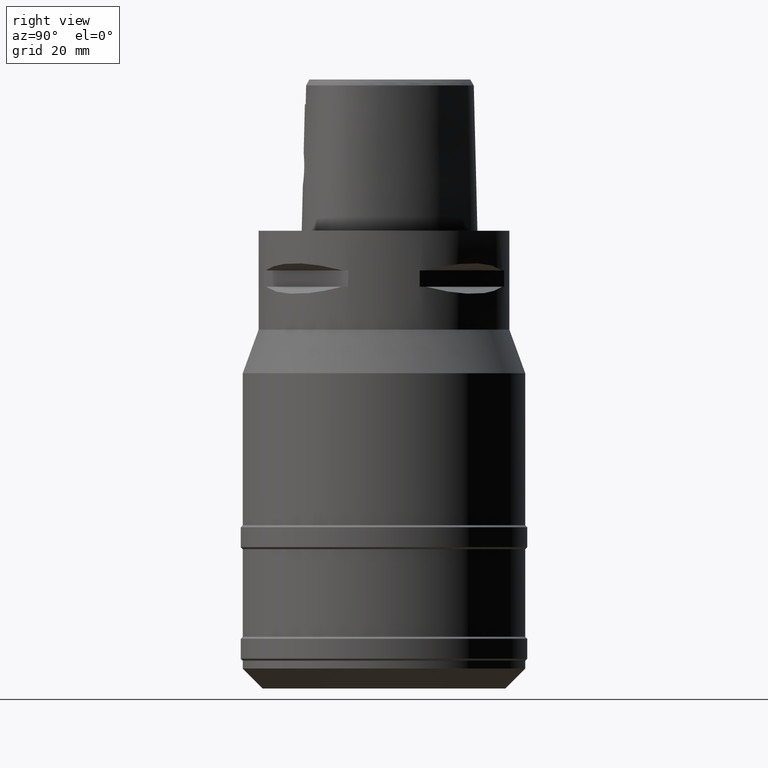
[diagram: clean part render]
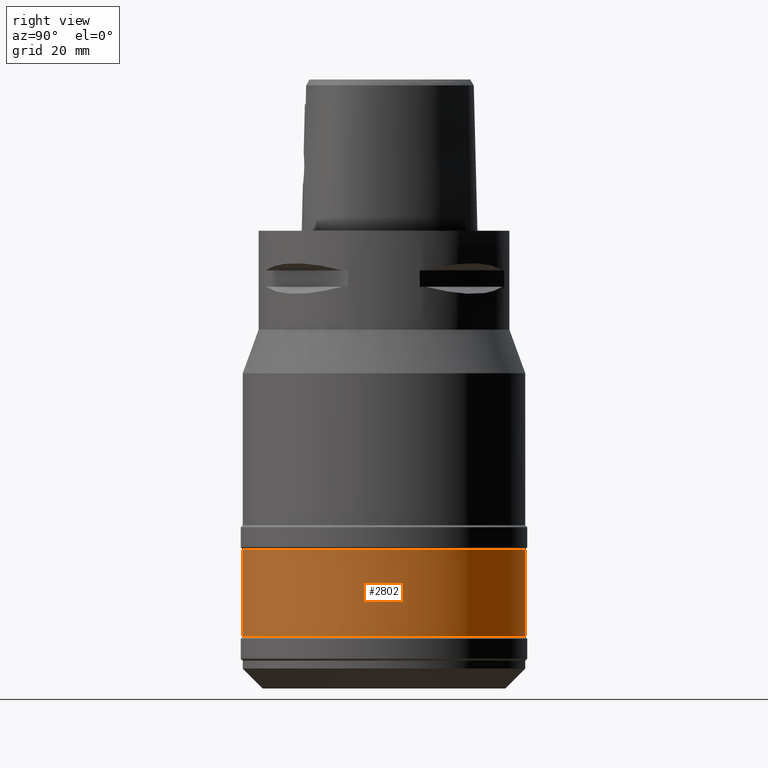
[diagram: same view with one face highlighted and labeled with its STEP entity id]
A machine part, right view. The second image highlights one B-rep face of the part: STEP entity #2802.
In plain terms, the highlighted cylindrical surface (partial cylindrical patch) has radius 35.5 mm, axis along (0, 0, -1).
Its self-contained STEP definition (entity closure, byte-faithful):
#669=CARTESIAN_POINT('',(0.E0,0.E0,-8.E1));
#670=DIRECTION('',(0.E0,0.E0,-1.E0));
#671=DIRECTION('',(0.E0,1.E0,0.E0));
#672=AXIS2_PLACEMENT_3D('',#669,#670,#671);
#708=DIRECTION('',(0.E0,0.E0,-1.E0));
#709=VECTOR('',#708,2.2E1);
#710=CARTESIAN_POINT('',(0.E0,-3.55E1,-8.E1));
#711=LINE('',#710,#709);
#715=DIRECTION('',(0.E0,0.E0,-1.E0));
#716=VECTOR('',#715,2.2E1);
#717=CARTESIAN_POINT('',(0.E0,3.55E1,-8.E1));
#718=LINE('',#717,#716);
#737=CARTESIAN_POINT('',(0.E0,0.E0,-1.02E2));
#738=DIRECTION('',(0.E0,0.E0,1.E0));
#739=DIRECTION('',(0.E0,-1.E0,0.E0));
#740=AXIS2_PLACEMENT_3D('',#737,#738,#739);
#1756=CARTESIAN_POINT('',(0.E0,3.55E1,-8.E1));
#1757=VERTEX_POINT('',#1756);
#1758=CARTESIAN_POINT('',(0.E0,-3.55E1,-8.E1));
#1759=VERTEX_POINT('',#1758);
#1760=CARTESIAN_POINT('',(0.E0,3.55E1,-1.02E2));
#1761=VERTEX_POINT('',#1760);
#1762=CARTESIAN_POINT('',(0.E0,-3.55E1,-1.02E2));
#1763=VERTEX_POINT('',#1762);
#2790=CARTESIAN_POINT('',(0.E0,1.295063990098E-14,5.75E0));
#2791=DIRECTION('',(0.E0,0.E0,-1.E0));
#2792=DIRECTION('',(0.E0,-1.E0,0.E0));
#2793=AXIS2_PLACEMENT_3D('',#2790,#2791,#2792);
#2794=CYLINDRICAL_SURFACE('',#2793,3.55E1);
#2795=ORIENTED_EDGE('',*,*,#2780,.T.);
#2797=ORIENTED_EDGE('',*,*,#2796,.F.);
#2798=ORIENTED_EDGE('',*,*,#2783,.F.);
#2799=ORIENTED_EDGE('',*,*,#2754,.F.);
#2800=EDGE_LOOP('',(#2795,#2797,#2798,#2799));
#2801=FACE_OUTER_BOUND('',#2800,.F.);
#673=CIRCLE('',#672,3.55E1);
#741=CIRCLE('',#740,3.55E1);
#2754=EDGE_CURVE('',#1757,#1759,#673,.T.);
#2780=EDGE_CURVE('',#1757,#1761,#718,.T.);
#2783=EDGE_CURVE('',#1759,#1763,#711,.T.);
#2796=EDGE_CURVE('',#1763,#1761,#741,.T.);
#2802=ADVANCED_FACE('',(#2801),#2794,.T.);